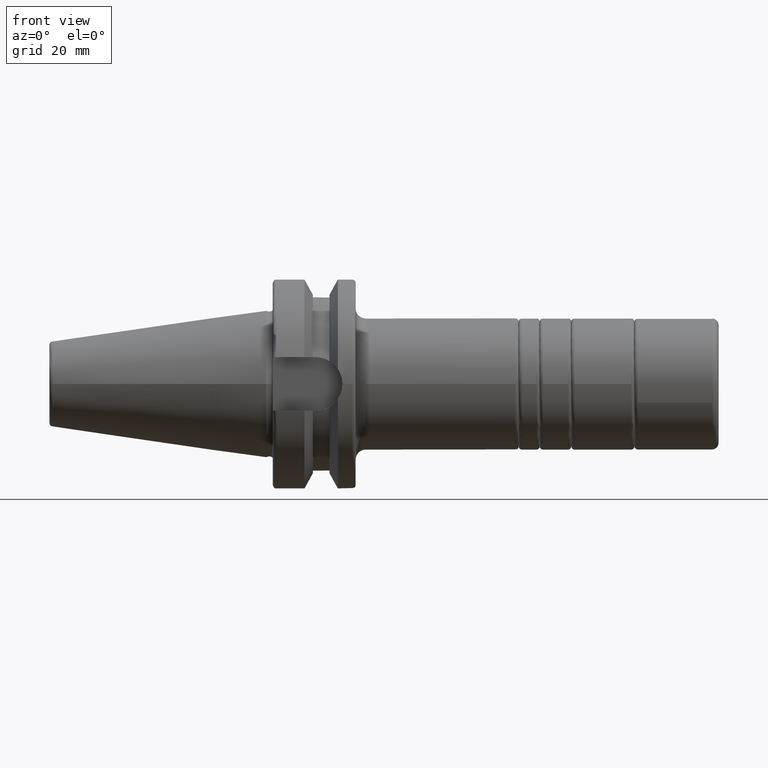
[diagram: clean part render]
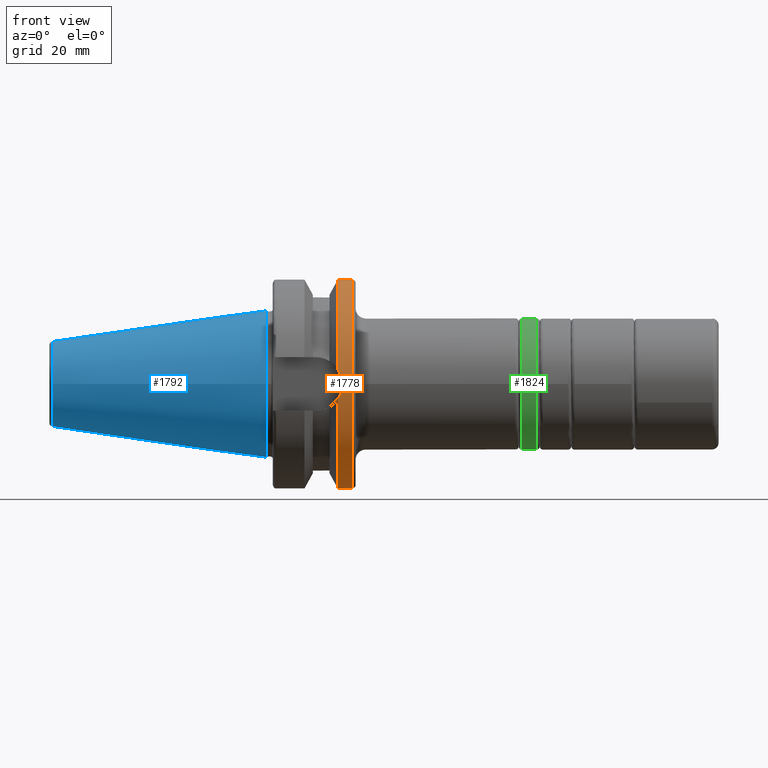
[diagram: same view with three faces highlighted in distinct colors, each labeled with its STEP entity id]
A machine part, front view with three faces highlighted in distinct colors.
Their STEP definitions:

[orange] entity #1778 — the highlighted cylindrical surface (bore or boss wall) has radius 31.5 mm, axis along (1, 0, 0).
#200=FACE_OUTER_BOUND('',#313,.T.);
#313=EDGE_LOOP('',(#1339,#1340,#1341,#1342,#1343,#1344,#1345,#1346,#1347));
#440=CIRCLE('',#2061,31.5);
#441=CIRCLE('',#2062,31.5);
#442=CIRCLE('',#2063,31.5);
#443=CIRCLE('',#2064,31.5);
#564=LINE('',#3120,#664);
#664=VECTOR('',#2411,31.5);
#740=B_SPLINE_CURVE_WITH_KNOTS('',3,(#3030,#3031,#3032,#3033,#3034,#3035),
 .UNSPECIFIED.,.F.,.F.,(4,2,4),(1.21877751840372,1.52344857393281,1.67526011710938),
 .UNSPECIFIED.);
#741=B_SPLINE_CURVE_WITH_KNOTS('',3,(#3037,#3038,#3039,#3040,#3041,#3042),
 .UNSPECIFIED.,.F.,.F.,(4,2,4),(0.762294919698049,0.914106462874623,1.21877751840372),
 .UNSPECIFIED.);
#746=B_SPLINE_CURVE_WITH_KNOTS('',3,(#3124,#3125,#3126,#3127,#3128,#3129,
#3130,#3131,#3132,#3133),.UNSPECIFIED.,.F.,.F.,(4,2,2,2,4),(3.19984995650548,
3.35166149968205,3.65633255521115,3.96100361074024,4.11281515391681),
 .UNSPECIFIED.);
#796=VERTEX_POINT('',#3022);
#797=VERTEX_POINT('',#3029);
#798=VERTEX_POINT('',#3036);
#816=VERTEX_POINT('',#3117);
#817=VERTEX_POINT('',#3118);
#818=VERTEX_POINT('',#3121);
#819=VERTEX_POINT('',#3123);
#990=EDGE_CURVE('',#797,#796,#740,.T.);
#991=EDGE_CURVE('',#798,#797,#741,.T.);
#1013=EDGE_CURVE('',#816,#817,#440,.T.);
#1014=EDGE_CURVE('',#816,#797,#564,.T.);
#1015=EDGE_CURVE('',#796,#818,#441,.T.);
#1016=EDGE_CURVE('',#818,#819,#746,.T.);
#1017=EDGE_CURVE('',#819,#798,#442,.T.);
#1018=EDGE_CURVE('',#817,#816,#443,.T.);
#1339=ORIENTED_EDGE('',*,*,#1013,.F.);
#1340=ORIENTED_EDGE('',*,*,#1014,.T.);
#1341=ORIENTED_EDGE('',*,*,#990,.T.);
#1342=ORIENTED_EDGE('',*,*,#1015,.T.);
#1343=ORIENTED_EDGE('',*,*,#1016,.T.);
#1344=ORIENTED_EDGE('',*,*,#1017,.T.);
#1345=ORIENTED_EDGE('',*,*,#991,.T.);
#1346=ORIENTED_EDGE('',*,*,#1014,.F.);
#1347=ORIENTED_EDGE('',*,*,#1018,.F.);
#1729=CYLINDRICAL_SURFACE('',#2060,31.5);
#1778=ADVANCED_FACE('',(#200),#1729,.T.);
#2060=AXIS2_PLACEMENT_3D('',#3116,#2407,#2408);
#2061=AXIS2_PLACEMENT_3D('',#3119,#2409,#2410);
#2062=AXIS2_PLACEMENT_3D('',#3122,#2412,#2413);
#2063=AXIS2_PLACEMENT_3D('',#3134,#2414,#2415);
#2064=AXIS2_PLACEMENT_3D('',#3135,#2416,#2417);
#2407=DIRECTION('center_axis',(1.,0.,0.));
#2408=DIRECTION('ref_axis',(0.,1.,0.));
#2409=DIRECTION('center_axis',(1.,0.,0.));
#2410=DIRECTION('ref_axis',(0.,0.,-1.));
#2411=DIRECTION('',(-1.,0.,0.));
#2412=DIRECTION('center_axis',(1.,0.,0.));
#2413=DIRECTION('ref_axis',(0.,0.,-1.));
#2414=DIRECTION('center_axis',(1.,0.,0.));
#2415=DIRECTION('ref_axis',(0.,0.,-1.));
#2416=DIRECTION('center_axis',(1.,0.,0.));
#2417=DIRECTION('ref_axis',(0.,0.,-1.));
#3022=CARTESIAN_POINT('',(21.6309636926618,-31.1782420264945,-4.49079326370462));
#3029=CARTESIAN_POINT('',(23.,-31.5,-2.34515234289152E-15));
#3030=CARTESIAN_POINT('Ctrl Pts',(23.,-31.5,-1.11022302462516E-15));
#3031=CARTESIAN_POINT('Ctrl Pts',(23.,-31.5,-1.01557018509698));
#3032=CARTESIAN_POINT('Ctrl Pts',(22.7961189876535,-31.445974204441,-2.09580170425552));
#3033=CARTESIAN_POINT('Ctrl Pts',(22.1796133812044,-31.2997625705024,-3.5806535819887));
#3034=CARTESIAN_POINT('Ctrl Pts',(21.92482980253,-31.2412125047166,-4.05360796141052));
#3035=CARTESIAN_POINT('Ctrl Pts',(21.6309636926618,-31.1782420264945,-4.49079326370462));
#3036=CARTESIAN_POINT('',(21.6309636926618,-31.1782420264945,4.49079326370462));
#3037=CARTESIAN_POINT('Ctrl Pts',(21.6309636926618,-31.1782420264945,4.49079326370462));
#3038=CARTESIAN_POINT('Ctrl Pts',(21.92482980253,-31.2412125047166,4.05360796141052));
#3039=CARTESIAN_POINT('Ctrl Pts',(22.1796133812044,-31.2997625705024,3.5806535819887));
#3040=CARTESIAN_POINT('Ctrl Pts',(22.7961189876535,-31.445974204441,2.09580170425552));
#3041=CARTESIAN_POINT('Ctrl Pts',(23.,-31.5,1.01557018509698));
#3042=CARTESIAN_POINT('Ctrl Pts',(23.,-31.5,-1.11022302462516E-15));
#3116=CARTESIAN_POINT('Origin',(23.8154818463309,0.,0.));
#3117=CARTESIAN_POINT('',(26.,-31.5,-3.85763741731416E-15));
#3118=CARTESIAN_POINT('',(26.,-3.85763741731416E-15,31.5));
#3119=CARTESIAN_POINT('Origin',(26.,0.,0.));
#3120=CARTESIAN_POINT('',(23.8154818463309,-31.5,-3.85763741731416E-15));
#3121=CARTESIAN_POINT('',(21.6309636926618,31.1782420264945,-4.49079326370462));
#3122=CARTESIAN_POINT('Origin',(21.6309636926618,0.,0.));
#3123=CARTESIAN_POINT('',(21.6309636926618,31.1782420264945,4.49079326370462));
#3124=CARTESIAN_POINT('Ctrl Pts',(21.6309636926618,31.1782420264945,-4.49079326370462));
#3125=CARTESIAN_POINT('Ctrl Pts',(21.92482980253,31.2412125047166,-4.05360796141052));
#3126=CARTESIAN_POINT('Ctrl Pts',(22.1796133812043,31.2997625705024,-3.5806535819887));
#3127=CARTESIAN_POINT('Ctrl Pts',(22.7961189876535,31.445974204441,-2.09580170425552));
#3128=CARTESIAN_POINT('Ctrl Pts',(23.,31.5,-1.01557018509698));
#3129=CARTESIAN_POINT('Ctrl Pts',(23.,31.5,1.01557018509698));
#3130=CARTESIAN_POINT('Ctrl Pts',(22.7961189876535,31.445974204441,2.09580170425552));
#3131=CARTESIAN_POINT('Ctrl Pts',(22.1796133812044,31.2997625705024,3.5806535819887));
#3132=CARTESIAN_POINT('Ctrl Pts',(21.92482980253,31.2412125047166,4.05360796141052));
#3133=CARTESIAN_POINT('Ctrl Pts',(21.6309636926618,31.1782420264945,4.49079326370462));
#3134=CARTESIAN_POINT('Origin',(21.6309636926618,0.,0.));
#3135=CARTESIAN_POINT('Origin',(26.,0.,0.));

[blue] entity #1792 — the highlighted conical surface has half-angle 8.297 deg.
#83=CONICAL_SURFACE('',#2091,17.5186442890469,0.144812498238939);
#214=FACE_OUTER_BOUND('',#327,.T.);
#327=EDGE_LOOP('',(#1417,#1418,#1419,#1420,#1421));
#453=CIRCLE('',#2087,12.8122885780937);
#454=CIRCLE('',#2088,12.8122885780937);
#457=CIRCLE('',#2092,22.225);
#580=LINE('',#3253,#680);
#680=VECTOR('',#2489,17.5186442890469);
#840=VERTEX_POINT('',#3243);
#841=VERTEX_POINT('',#3244);
#843=VERTEX_POINT('',#3251);
#1051=EDGE_CURVE('',#840,#841,#453,.T.);
#1052=EDGE_CURVE('',#841,#840,#454,.T.);
#1055=EDGE_CURVE('',#843,#843,#457,.T.);
#1056=EDGE_CURVE('',#843,#840,#580,.T.);
#1417=ORIENTED_EDGE('',*,*,#1055,.F.);
#1418=ORIENTED_EDGE('',*,*,#1056,.T.);
#1419=ORIENTED_EDGE('',*,*,#1051,.T.);
#1420=ORIENTED_EDGE('',*,*,#1052,.T.);
#1421=ORIENTED_EDGE('',*,*,#1056,.F.);
#1792=ADVANCED_FACE('',(#214),#83,.T.);
#2087=AXIS2_PLACEMENT_3D('',#3245,#2477,#2478);
#2088=AXIS2_PLACEMENT_3D('',#3246,#2479,#2480);
#2091=AXIS2_PLACEMENT_3D('',#3250,#2485,#2486);
#2092=AXIS2_PLACEMENT_3D('',#3252,#2487,#2488);
#2477=DIRECTION('center_axis',(1.,0.,0.));
#2478=DIRECTION('ref_axis',(0.,0.,-1.));
#2479=DIRECTION('center_axis',(1.,0.,0.));
#2480=DIRECTION('ref_axis',(0.,0.,-1.));
#2485=DIRECTION('center_axis',(1.,0.,0.));
#2486=DIRECTION('ref_axis',(0.,1.,0.));
#2487=DIRECTION('center_axis',(1.,0.,0.));
#2488=DIRECTION('ref_axis',(0.,0.,-1.));
#2489=DIRECTION('',(-0.989532981063282,0.144306893071729,1.76724974695192E-17));
#3243=CARTESIAN_POINT('',(-64.5443068930717,-12.8122885780937,-1.56905281969147E-15));
#3244=CARTESIAN_POINT('',(-64.5443068930717,-1.56905281969147E-15,12.8122885780937));
#3245=CARTESIAN_POINT('Origin',(-64.5443068930717,0.,0.));
#3246=CARTESIAN_POINT('Origin',(-64.5443068930717,0.,0.));
#3250=CARTESIAN_POINT('Origin',(-32.2721534465359,0.,0.));
#3251=CARTESIAN_POINT('',(4.44089209850063E-15,-22.225,-2.72177751110499E-15));
#3252=CARTESIAN_POINT('Origin',(0.,0.,0.));
#3253=CARTESIAN_POINT('',(-32.2721534465359,-17.5186442890469,-2.14541516539823E-15));

[green] entity #1824 — the highlighted cylindrical surface (bore or boss wall) has radius 19.8 mm, axis along (-1, 0, 0).
#246=FACE_OUTER_BOUND('',#364,.T.);
#364=EDGE_LOOP('',(#1561,#1562,#1563,#1564,#1565,#1566));
#487=CIRCLE('',#2155,19.8);
#488=CIRCLE('',#2156,19.8);
#490=CIRCLE('',#2159,19.8);
#491=CIRCLE('',#2160,19.8);
#604=LINE('',#3392,#704);
#704=VECTOR('',#2647,19.8);
#876=VERTEX_POINT('',#3383);
#877=VERTEX_POINT('',#3384);
#878=VERTEX_POINT('',#3389);
#879=VERTEX_POINT('',#3390);
#1113=EDGE_CURVE('',#876,#877,#487,.T.);
#1114=EDGE_CURVE('',#877,#876,#488,.T.);
#1116=EDGE_CURVE('',#878,#879,#490,.T.);
#1117=EDGE_CURVE('',#878,#877,#604,.T.);
#1118=EDGE_CURVE('',#879,#878,#491,.T.);
#1561=ORIENTED_EDGE('',*,*,#1116,.F.);
#1562=ORIENTED_EDGE('',*,*,#1117,.T.);
#1563=ORIENTED_EDGE('',*,*,#1113,.F.);
#1564=ORIENTED_EDGE('',*,*,#1114,.F.);
#1565=ORIENTED_EDGE('',*,*,#1117,.F.);
#1566=ORIENTED_EDGE('',*,*,#1118,.F.);
#1740=CYLINDRICAL_SURFACE('',#2158,19.8);
#1824=ADVANCED_FACE('',(#246),#1740,.T.);
#2155=AXIS2_PLACEMENT_3D('',#3385,#2637,#2638);
#2156=AXIS2_PLACEMENT_3D('',#3386,#2639,#2640);
#2158=AXIS2_PLACEMENT_3D('',#3388,#2643,#2644);
#2159=AXIS2_PLACEMENT_3D('',#3391,#2645,#2646);
#2160=AXIS2_PLACEMENT_3D('',#3393,#2648,#2649);
#2637=DIRECTION('center_axis',(1.,0.,0.));
#2638=DIRECTION('ref_axis',(0.,-1.,-1.83697019872103E-16));
#2639=DIRECTION('center_axis',(1.,0.,0.));
#2640=DIRECTION('ref_axis',(0.,-1.,-1.83697019872103E-16));
#2643=DIRECTION('center_axis',(-1.,0.,0.));
#2644=DIRECTION('ref_axis',(0.,1.,0.));
#2645=DIRECTION('center_axis',(-1.,0.,0.));
#2646=DIRECTION('ref_axis',(0.,-1.,-1.83697019872103E-16));
#2647=DIRECTION('',(1.,0.,0.));
#2648=DIRECTION('center_axis',(-1.,0.,0.));
#2649=DIRECTION('ref_axis',(0.,-1.,-1.83697019872103E-16));
#3383=CARTESIAN_POINT('',(-1.,-2.42480066231176E-15,-19.8));
#3384=CARTESIAN_POINT('',(-1.,-19.8,2.42480066231176E-15));
#3385=CARTESIAN_POINT('Origin',(-1.,0.,0.));
#3386=CARTESIAN_POINT('Origin',(-1.,0.,0.));
#3388=CARTESIAN_POINT('Origin',(-3.175,0.,0.));
#3389=CARTESIAN_POINT('',(-5.35,-19.8,2.42480066231176E-15));
#3390=CARTESIAN_POINT('',(-5.35,-2.42480066231176E-15,-19.8));
#3391=CARTESIAN_POINT('Origin',(-5.35,0.,0.));
#3392=CARTESIAN_POINT('',(-3.175,-19.8,2.42480066231176E-15));
#3393=CARTESIAN_POINT('Origin',(-5.35,0.,0.));